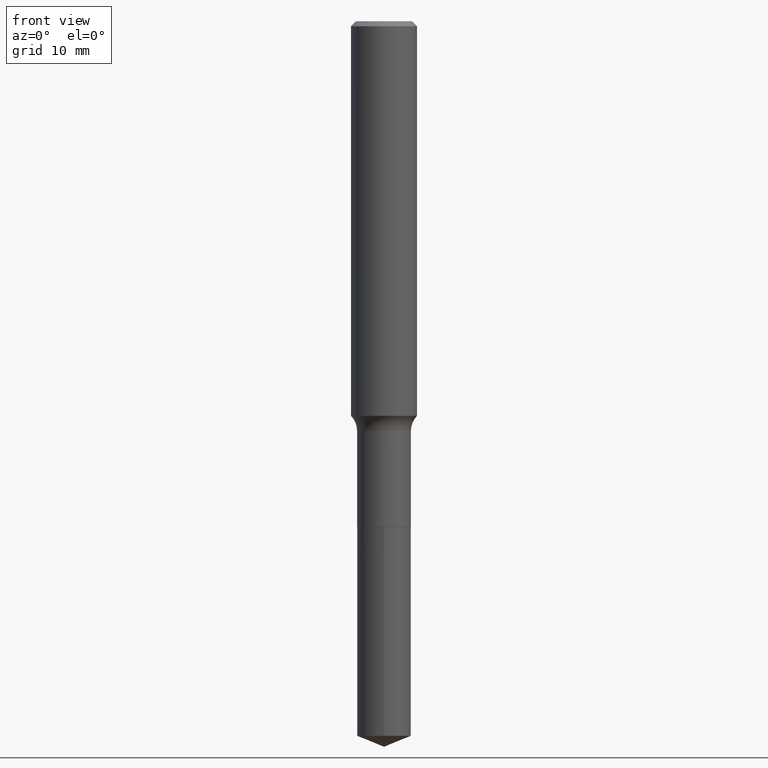
[diagram: clean part render]
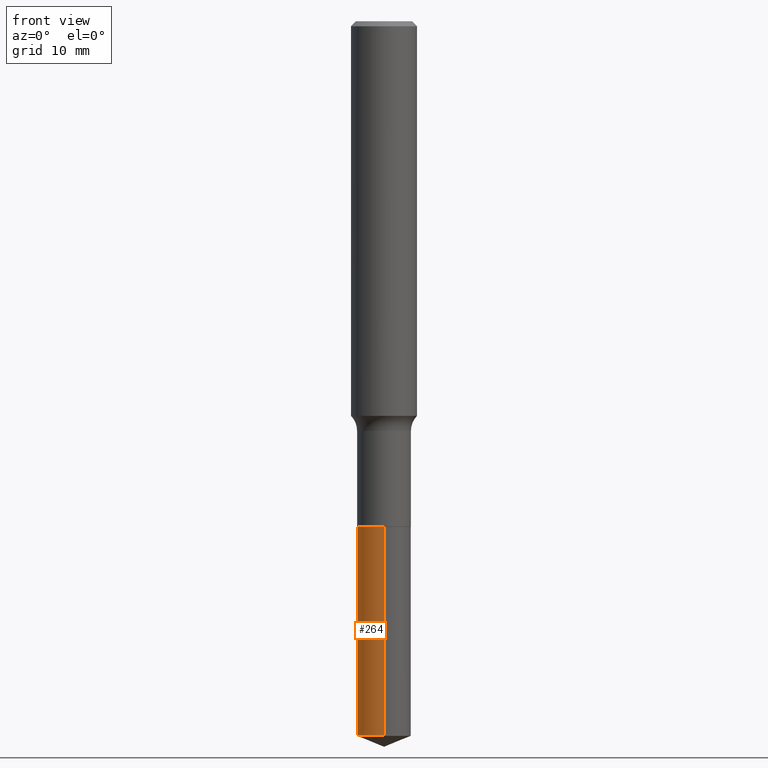
[diagram: same view with one face highlighted and labeled with its STEP entity id]
A machine part, front view. The second image highlights one B-rep face of the part: STEP entity #264.
In plain terms, the highlighted cylindrical surface (edge-blend (fillet) strip) has radius 2.4498 mm, axis along (-0, 0, 1).
Its self-contained STEP definition (entity closure, byte-faithful):
#3 = DIRECTION ( 'NONE',  ( -6.982962677686265922E-15, -1.000000000000000000, 2.832398127179121732E-15 ) ) ;
#6 = VERTEX_POINT ( 'NONE', #225 ) ;
#13 = CARTESIAN_POINT ( 'NONE',  ( 6.248508729631835986E-29, -8.951246779057046401E-15, -2.559431670518199642 ) ) ;
#15 = ORIENTED_EDGE ( 'NONE', *, *, #475, .F. ) ;
#43 = EDGE_CURVE ( 'NONE', #6, #461, #163, .T. ) ;
#45 = DIRECTION ( 'NONE',  ( -2.431437355357483089E-29, 3.511575175048930123E-15, 1.000000000000000000 ) ) ;
#98 = AXIS2_PLACEMENT_3D ( 'NONE', #13, #437, #463 ) ;
#99 = AXIS2_PLACEMENT_3D ( 'NONE', #371, #151, #267 ) ;
#108 = CARTESIAN_POINT ( 'NONE',  ( -6.735067502627961581E-16, -0.09645000000000632234, -1.810999999999999721 ) ) ;
#117 = EDGE_CURVE ( 'NONE', #6, #397, #344, .T. ) ;
#144 = VECTOR ( 'NONE', #270, 39.37007874015748143 ) ;
#151 = DIRECTION ( 'NONE',  ( -2.431437355357483089E-29, 3.511575175048930123E-15, 1.000000000000000000 ) ) ;
#155 = CARTESIAN_POINT ( 'NONE',  ( 6.853184686406793016E-16, 0.09644999999999366580, -1.811000000000000165 ) ) ;
#157 = CARTESIAN_POINT ( 'NONE',  ( 6.853184686406608620E-16, 0.09644999999999369356, -1.811000000000000165 ) ) ;
#163 = CIRCLE ( 'NONE', #98, 0.09645000000000000795 ) ;
#173 = CIRCLE ( 'NONE', #99, 0.09644999999999999407 ) ;
#192 = AXIS2_PLACEMENT_3D ( 'NONE', #210, #45, #3 ) ;
#199 = VECTOR ( 'NONE', #408, 39.37007874015748143 ) ;
#210 = CARTESIAN_POINT ( 'NONE',  ( 4.428744008001282238E-29, -6.323072704644935995E-15, -1.810999999999999943 ) ) ;
#225 = CARTESIAN_POINT ( 'NONE',  ( 6.853184686406793016E-16, 0.09644999999999109841, -2.559431670518200086 ) ) ;
#235 = VERTEX_POINT ( 'NONE', #327 ) ;
#247 = FACE_OUTER_BOUND ( 'NONE', #358, .T. ) ;
#264 = ADVANCED_FACE ( 'NONE', ( #247 ), #388, .T. ) ;
#267 = DIRECTION ( 'NONE',  ( -6.982962677686265133E-15, -1.000000000000000000, 2.832398127179122126E-15 ) ) ;
#270 = DIRECTION ( 'NONE',  ( -2.431437355357483089E-29, 3.511575175048929728E-15, 1.000000000000000000 ) ) ;
#327 = CARTESIAN_POINT ( 'NONE',  ( -6.735067502627959609E-16, -0.09645000000000630846, -1.810999999999999721 ) ) ;
#333 = CARTESIAN_POINT ( 'NONE',  ( -6.735067502627781129E-16, -0.09645000000000898688, -2.559431670518198754 ) ) ;
#344 = LINE ( 'NONE', #157, #199 ) ;
#347 = EDGE_CURVE ( 'NONE', #461, #235, #400, .T. ) ;
#352 = ORIENTED_EDGE ( 'NONE', *, *, #117, .F. ) ;
#358 = EDGE_LOOP ( 'NONE', ( #352, #451, #386, #15 ) ) ;
#371 = CARTESIAN_POINT ( 'NONE',  ( 4.428744008001282238E-29, -6.323072704644935995E-15, -1.810999999999999943 ) ) ;
#386 = ORIENTED_EDGE ( 'NONE', *, *, #347, .T. ) ;
#388 = CYLINDRICAL_SURFACE ( 'NONE', #192, 0.09645000000000000795 ) ;
#397 = VERTEX_POINT ( 'NONE', #155 ) ;
#400 = LINE ( 'NONE', #108, #144 ) ;
#408 = DIRECTION ( 'NONE',  ( -2.431437355357483089E-29, 3.511575175048929728E-15, 1.000000000000000000 ) ) ;
#437 = DIRECTION ( 'NONE',  ( -2.431437355357483089E-29, 3.511575175048930123E-15, 1.000000000000000000 ) ) ;
#451 = ORIENTED_EDGE ( 'NONE', *, *, #43, .T. ) ;
#461 = VERTEX_POINT ( 'NONE', #333 ) ;
#463 = DIRECTION ( 'NONE',  ( -6.982962677686265922E-15, -1.000000000000000000, 5.664796254358243463E-15 ) ) ;
#475 = EDGE_CURVE ( 'NONE', #397, #235, #173, .T. ) ;